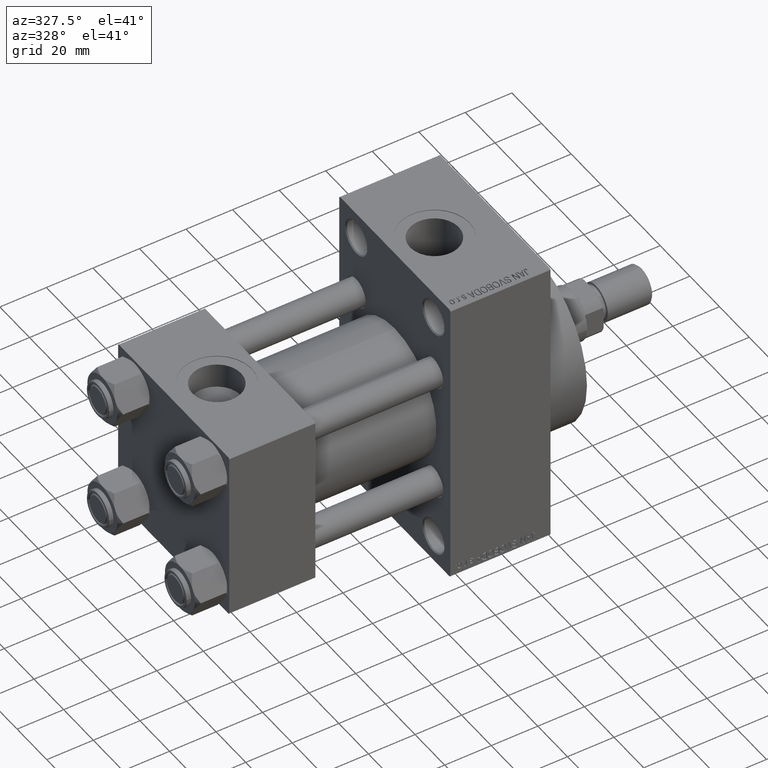
[diagram: clean part render]
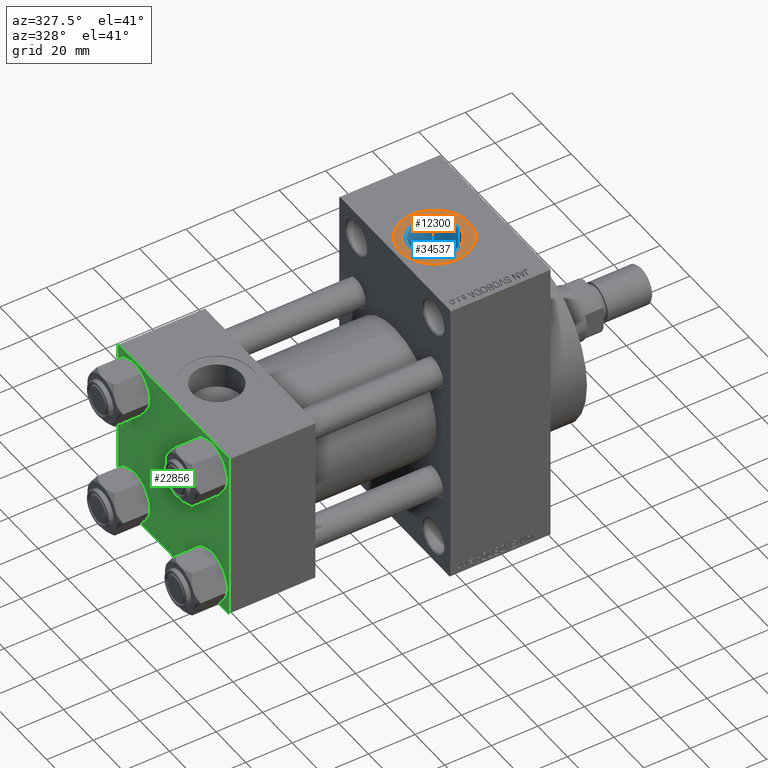
[diagram: same view with three faces highlighted in distinct colors, each labeled with its STEP entity id]
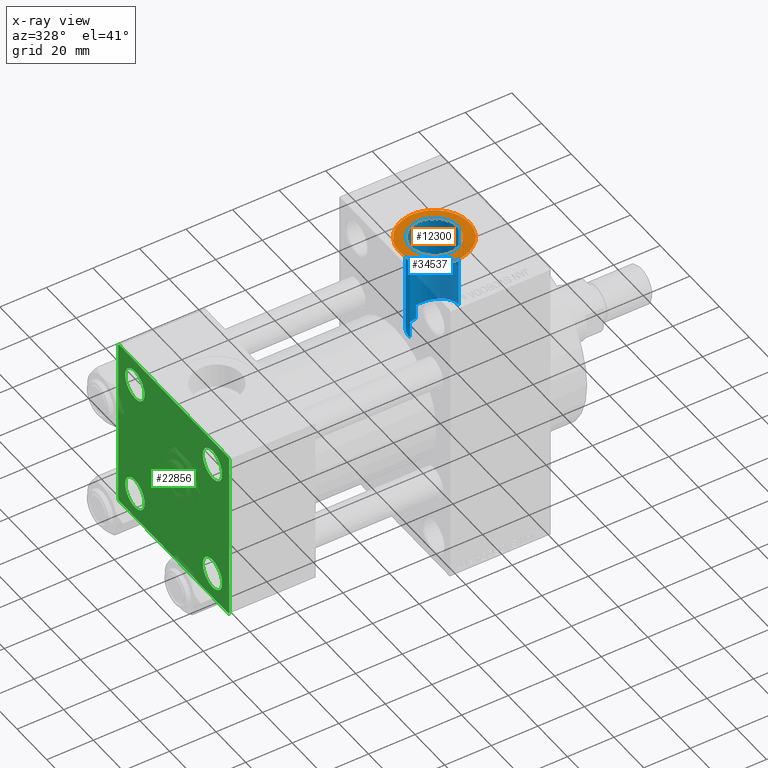
[diagram: x-ray of the same camera — body ghosted, the three highlighted faces saturated]
A machine part, auxiliary view with three faces highlighted in distinct colors.
The next image is the same camera in x-ray (body ghosted, the three faces saturated) — at least one of them is partly hidden behind the body in this view.
Their STEP definitions:

[orange] entity #12300 — the highlighted planar face has unit normal (0, 0, 1).
#166 = DIRECTION ( 'NONE',  ( 0.000000000000000000, 0.000000000000000000, 1.000000000000000000 ) ) ;
#2687 = ORIENTED_EDGE ( 'NONE', *, *, #12467, .T. ) ;
#2760 = CIRCLE ( 'NONE', #14005, 15.00000000000000000 ) ;
#4150 = DIRECTION ( 'NONE',  ( -0.000000000000000000, -0.000000000000000000, -1.000000000000000000 ) ) ;
#4893 = AXIS2_PLACEMENT_3D ( 'NONE', #23247, #4150, #15458 ) ;
#6428 = DIRECTION ( 'NONE',  ( 1.000000000000000000, 0.000000000000000000, 0.000000000000000000 ) ) ;
#7208 = ORIENTED_EDGE ( 'NONE', *, *, #42779, .T. ) ;
#7538 = DIRECTION ( 'NONE',  ( 1.000000000000000000, 0.000000000000000000, -0.000000000000000000 ) ) ;
#8243 = AXIS2_PLACEMENT_3D ( 'NONE', #41852, #37830, #6428 ) ;
#9765 = CARTESIAN_POINT ( 'NONE',  ( 112.0000000000000000, -1.184237892933500047E-14, 63.79999999999996874 ) ) ;
#11311 = CARTESIAN_POINT ( 'NONE',  ( 112.0000000000000000, -1.184237892933500047E-14, 63.79999999999996874 ) ) ;
#12300 = ADVANCED_FACE ( 'NONE', ( #33937, #49302 ), #30159, .T. ) ;
#12467 = EDGE_CURVE ( 'NONE', #18960, #23036, #2760, .T. ) ;
#14005 = AXIS2_PLACEMENT_3D ( 'NONE', #9765, #37166, #48501 ) ;
#15458 = DIRECTION ( 'NONE',  ( 1.000000000000000000, 0.000000000000000000, 0.000000000000000000 ) ) ;
#17566 = CARTESIAN_POINT ( 'NONE',  ( 122.4800000000000040, -1.055894908382857498E-14, 63.79999999999996874 ) ) ;
#18960 = VERTEX_POINT ( 'NONE', #45325 ) ;
#21262 = AXIS2_PLACEMENT_3D ( 'NONE', #22539, #166, #41916 ) ;
#22539 = CARTESIAN_POINT ( 'NONE',  ( 112.0000000000000000, -1.184237892933500047E-14, 63.79999999999996874 ) ) ;
#23036 = VERTEX_POINT ( 'NONE', #30461 ) ;
#23247 = CARTESIAN_POINT ( 'NONE',  ( 112.0000000000000000, -1.184237892933500047E-14, 63.79999999999996874 ) ) ;
#23583 = EDGE_CURVE ( 'NONE', #23036, #18960, #28481, .T. ) ;
#26636 = DIRECTION ( 'NONE',  ( 0.000000000000000000, 0.000000000000000000, 1.000000000000000000 ) ) ;
#26947 = ORIENTED_EDGE ( 'NONE', *, *, #23583, .T. ) ;
#28481 = CIRCLE ( 'NONE', #21262, 15.00000000000000000 ) ;
#30159 = PLANE ( 'NONE',  #43683 ) ;
#30461 = CARTESIAN_POINT ( 'NONE',  ( 127.0000000000000000, -1.184237892933500047E-14, 63.79999999999996874 ) ) ;
#30896 = ORIENTED_EDGE ( 'NONE', *, *, #42228, .T. ) ;
#33937 = FACE_BOUND ( 'NONE', #35736, .T. ) ;
#35736 = EDGE_LOOP ( 'NONE', ( #7208, #30896 ) ) ;
#37166 = DIRECTION ( 'NONE',  ( 0.000000000000000000, 0.000000000000000000, 1.000000000000000000 ) ) ;
#37830 = DIRECTION ( 'NONE',  ( -0.000000000000000000, -0.000000000000000000, -1.000000000000000000 ) ) ;
#39418 = CIRCLE ( 'NONE', #4893, 10.48000000000000398 ) ;
#39987 = VERTEX_POINT ( 'NONE', #45945 ) ;
#41852 = CARTESIAN_POINT ( 'NONE',  ( 112.0000000000000000, -1.184237892933500047E-14, 63.79999999999996874 ) ) ;
#41916 = DIRECTION ( 'NONE',  ( 1.000000000000000000, 0.000000000000000000, 0.000000000000000000 ) ) ;
#42228 = EDGE_CURVE ( 'NONE', #45320, #39987, #39418, .T. ) ;
#42779 = EDGE_CURVE ( 'NONE', #39987, #45320, #45194, .T. ) ;
#43683 = AXIS2_PLACEMENT_3D ( 'NONE', #11311, #26636, #7538 ) ;
#45194 = CIRCLE ( 'NONE', #8243, 10.48000000000000398 ) ;
#45320 = VERTEX_POINT ( 'NONE', #17566 ) ;
#45325 = CARTESIAN_POINT ( 'NONE',  ( 96.99999999999998579, -1.000540873061397009E-14, 63.79999999999996874 ) ) ;
#45945 = CARTESIAN_POINT ( 'NONE',  ( 101.5199999999999960, -1.184237892933500047E-14, 63.79999999999996874 ) ) ;
#48501 = DIRECTION ( 'NONE',  ( 1.000000000000000000, 0.000000000000000000, 0.000000000000000000 ) ) ;
#49302 = FACE_OUTER_BOUND ( 'NONE', #49356, .T. ) ;
#49356 = EDGE_LOOP ( 'NONE', ( #26947, #2687 ) ) ;

[blue] entity #34537 — the highlighted cylindrical surface (edge-blend (fillet) strip) has radius 10.48 mm, axis along (0, 0, -1).
#1329 = CYLINDRICAL_SURFACE ( 'NONE', #24700, 10.48000000000000398 ) ;
#1929 = CARTESIAN_POINT ( 'NONE',  ( 120.0047687462550954, 6.803400717438811363, 25.61891449644601337 ) ) ;
#2421 = CARTESIAN_POINT ( 'NONE',  ( 116.5354866893690655, 9.476643251961673897, 24.75065044043747164 ) ) ;
#2475 = CARTESIAN_POINT ( 'NONE',  ( 110.7400000000000375, 10.40398000767013365, 86.79999999999995453 ) ) ;
#2677 = CARTESIAN_POINT ( 'NONE',  ( 101.8172526941615104, 2.560154069184302994, 20.34938652026761119 ) ) ;
#2930 = CARTESIAN_POINT ( 'NONE',  ( 102.3367565711945701, 4.068703859687935243, 20.09447083081811769 ) ) ;
#4240 = CARTESIAN_POINT ( 'NONE',  ( 122.4800000000000040, -1.055894908382857498E-14, 86.79999999999995453 ) ) ;
#4909 = VERTEX_POINT ( 'NONE', #20077 ) ;
#5458 = CARTESIAN_POINT ( 'NONE',  ( 113.7090337631726413, 10.34650826617284558, 24.39684948145013621 ) ) ;
#5699 = CARTESIAN_POINT ( 'NONE',  ( 122.4800000000000040, 0.3734547879239727419, 26.49999999999999645 ) ) ;
#5964 = CARTESIAN_POINT ( 'NONE',  ( 110.4203714346557348, 10.36527059146240148, 17.68652548756300291 ) ) ;
#5995 = LINE ( 'NONE', #6251, #9187 ) ;
#6206 = CARTESIAN_POINT ( 'NONE',  ( 112.2299651273087733, 10.50378173186091857, 24.32953270370887466 ) ) ;
#6251 = CARTESIAN_POINT ( 'NONE',  ( 101.5199999999999960, -1.184237892933500047E-14, 86.79999999999995453 ) ) ;
#6428 = DIRECTION ( 'NONE',  ( 1.000000000000000000, 0.000000000000000000, 0.000000000000000000 ) ) ;
#6458 = CARTESIAN_POINT ( 'NONE',  ( 101.9916734818969957, 3.173751558613250090, 20.26192827245122885 ) ) ;
#6703 = CARTESIAN_POINT ( 'NONE',  ( 101.5808659713658244, 1.297835754585097590, 20.46869666010345767 ) ) ;
#6749 = VECTOR ( 'NONE', #48514, 1000.000000000000000 ) ;
#6952 = CARTESIAN_POINT ( 'NONE',  ( 108.2549261276042216, 9.808449044963712282, 18.00254357143011319 ) ) ;
#8243 = AXIS2_PLACEMENT_3D ( 'NONE', #41852, #37830, #6428 ) ;
#9187 = VECTOR ( 'NONE', #41183, 1000.000000000000000 ) ;
#9228 = CARTESIAN_POINT ( 'NONE',  ( 110.7400000000000375, 10.40398000767013365, 24.37226292324945831 ) ) ;
#10232 = CARTESIAN_POINT ( 'NONE',  ( 121.8350634734960209, 3.638478613961682040, 26.25141056013274010 ) ) ;
#10317 = CARTESIAN_POINT ( 'NONE',  ( 110.7400000000000375, 10.40398000767013365, 17.66372554134603234 ) ) ;
#10728 = CARTESIAN_POINT ( 'NONE',  ( 103.4011913467666233, 5.999084284177357951, 19.60435374003196785 ) ) ;
#11794 = DIRECTION ( 'NONE',  ( 0.000000000000000000, 0.000000000000000000, -1.000000000000000000 ) ) ;
#12525 = EDGE_CURVE ( 'NONE', #39987, #13561, #5995, .T. ) ;
#12890 = DIRECTION ( 'NONE',  ( -1.000000000000000000, 0.000000000000000000, 0.000000000000000000 ) ) ;
#13513 = CARTESIAN_POINT ( 'NONE',  ( 103.7748447540609931, 6.501949221870917839, 19.44336272688398992 ) ) ;
#13561 = VERTEX_POINT ( 'NONE', #17795 ) ;
#13752 = CARTESIAN_POINT ( 'NONE',  ( 101.5199999999999960, 2.510525899711658857E-15, 20.50000000000000000 ) ) ;
#13994 = CARTESIAN_POINT ( 'NONE',  ( 122.1639830582153223, 2.580729652396743568, 26.37652280659619919 ) ) ;
#14487 = CARTESIAN_POINT ( 'NONE',  ( 106.5676313420410679, 8.967626198694219397, 18.43549189657611009 ) ) ;
#14617 = ORIENTED_EDGE ( 'NONE', *, *, #42779, .F. ) ;
#15980 = B_SPLINE_CURVE_WITH_KNOTS ( 'NONE', 3,
 ( #13752, #41149, #6703, #2677, #6458, #2930, #17753, #29821, #48955, #45172, #10728, #13513, #21773, #28839, #26055, #37129, #25059, #14487, #40411, #41402, #6952, #33105, #48463, #17515, #5964, #36382 ),
 .UNSPECIFIED., .F., .F.,
 ( 4, 2, 2, 2, 2, 2, 2, 2, 2, 2, 2, 2, 4 ),
 ( 0.03336594956818871721, 0.03529115265112772043, 0.03721635573406671671, 0.03817895727553621138, 0.03914155881700570605, 0.04010416035847520072, 0.04106676189994469539, 0.04299196498288371249, 0.04395456652435320716, 0.04491716806582270183, 0.04684237114876168423, 0.04780497269023117890, 0.04876757423170067357 ),
 .UNSPECIFIED. ) ;
#16649 = EDGE_CURVE ( 'NONE', #45320, #4909, #38682, .T. ) ;
#17515 = CARTESIAN_POINT ( 'NONE',  ( 110.0991158311732221, 10.31120164165120023, 17.71821964665046778 ) ) ;
#17558 = LINE ( 'NONE', #2475, #6749 ) ;
#17566 = CARTESIAN_POINT ( 'NONE',  ( 122.4800000000000040, -1.055894908382857498E-14, 63.79999999999996874 ) ) ;
#17746 = CARTESIAN_POINT ( 'NONE',  ( 118.4137155183433237, 8.320227012065174677, 25.16506772452921936 ) ) ;
#17753 = CARTESIAN_POINT ( 'NONE',  ( 102.4658413712517557, 4.362386374640967013, 20.03258463067211892 ) ) ;
#17795 = CARTESIAN_POINT ( 'NONE',  ( 101.5199999999999960, 2.510525899711658857E-15, 20.50000000000000000 ) ) ;
#18691 = B_SPLINE_CURVE_WITH_KNOTS ( 'NONE', 3,
 ( #9228, #25310, #6206, #21014, #5458, #28582, #21529, #36875, #2421, #24550, #17746, #24800, #1929, #39910, #33096, #48456, #10232, #43928, #13994, #40149, #20776, #44179, #5699, #40403 ),
 .UNSPECIFIED., .F., .F.,
 ( 4, 2, 2, 2, 2, 2, 2, 2, 2, 2, 2, 4 ),
 ( 0.000000000000000000, 0.002226462588988903889, 0.003339693883483335016, 0.004452925177977766144, 0.006679387766966586766, 0.008905850355955407388, 0.01113231294494422714, 0.01335877553393304516, 0.01447200682842746632, 0.01558523812292188573, 0.01669846941741630689, 0.01781170071191072457 ),
 .UNSPECIFIED. ) ;
#20077 = CARTESIAN_POINT ( 'NONE',  ( 122.4800000000001603, 1.369086318735094867E-14, 26.50000000000006750 ) ) ;
#20147 = ORIENTED_EDGE ( 'NONE', *, *, #16649, .F. ) ;
#20776 = CARTESIAN_POINT ( 'NONE',  ( 122.3797757294332484, 1.493268271475387765, 26.46049876817950164 ) ) ;
#21014 = CARTESIAN_POINT ( 'NONE',  ( 113.3395490093498239, 10.40067243543118636, 24.37370326712205326 ) ) ;
#21462 = ORIENTED_EDGE ( 'NONE', *, *, #29340, .T. ) ;
#21529 = CARTESIAN_POINT ( 'NONE',  ( 114.8037318579564072, 10.10473920047652996, 24.49813564323964954 ) ) ;
#21718 = CARTESIAN_POINT ( 'NONE',  ( 110.7400000000000375, 10.40398000767013365, 24.37226292324945831 ) ) ;
#21773 = CARTESIAN_POINT ( 'NONE',  ( 103.9742710306879445, 6.746563713616611224, 19.35963802281104762 ) ) ;
#23957 = CARTESIAN_POINT ( 'NONE',  ( 112.0000000000000000, -1.184237892933500047E-14, 86.79999999999995453 ) ) ;
#24317 = ORIENTED_EDGE ( 'NONE', *, *, #44491, .F. ) ;
#24550 = CARTESIAN_POINT ( 'NONE',  ( 117.8214836787066560, 8.745726648652290436, 25.01826792439339897 ) ) ;
#24700 = AXIS2_PLACEMENT_3D ( 'NONE', #23957, #39300, #12890 ) ;
#24800 = CARTESIAN_POINT ( 'NONE',  ( 119.5039792871088196, 7.352021432312235483, 25.46477158686608533 ) ) ;
#25059 = CARTESIAN_POINT ( 'NONE',  ( 106.0406083823525449, 8.626389767625555649, 18.59760954222976181 ) ) ;
#25310 = CARTESIAN_POINT ( 'NONE',  ( 111.4867779838282615, 10.49442042171647493, 24.33365591073748035 ) ) ;
#26055 = CARTESIAN_POINT ( 'NONE',  ( 105.0528299167331312, 7.871036018965745562, 18.93334913321979585 ) ) ;
#26743 = VERTEX_POINT ( 'NONE', #21718 ) ;
#28582 = CARTESIAN_POINT ( 'NONE',  ( 114.4441749543285738, 10.19789382658400179, 24.45934298840090193 ) ) ;
#28839 = CARTESIAN_POINT ( 'NONE',  ( 104.5999354725380783, 7.447256858224746701, 19.10589413119057767 ) ) ;
#29137 = VECTOR ( 'NONE', #11794, 1000.000000000000000 ) ;
#29340 = EDGE_CURVE ( 'NONE', #26743, #4909, #18691, .T. ) ;
#29821 = CARTESIAN_POINT ( 'NONE',  ( 102.7465031261292978, 4.929846979882105629, 19.90053945554344139 ) ) ;
#31896 = ORIENTED_EDGE ( 'NONE', *, *, #37893, .T. ) ;
#33096 = CARTESIAN_POINT ( 'NONE',  ( 121.2405592406192341, 4.999168989607013280, 26.03318073817900213 ) ) ;
#33105 = CARTESIAN_POINT ( 'NONE',  ( 109.1609584177873273, 10.09308949919720533, 17.84352421155690394 ) ) ;
#33801 = VERTEX_POINT ( 'NONE', #10317 ) ;
#34537 = ADVANCED_FACE ( 'NONE', ( #43320 ), #1329, .F. ) ;
#36382 = CARTESIAN_POINT ( 'NONE',  ( 110.7400000000000375, 10.40398000767013365, 17.66372554134603234 ) ) ;
#36875 = CARTESIAN_POINT ( 'NONE',  ( 115.8597611319121512, 9.771269649766484378, 24.63391780956525778 ) ) ;
#37129 = CARTESIAN_POINT ( 'NONE',  ( 105.7867860278862366, 8.445286684367433239, 18.68076181990201334 ) ) ;
#37830 = DIRECTION ( 'NONE',  ( -0.000000000000000000, -0.000000000000000000, -1.000000000000000000 ) ) ;
#37893 = EDGE_CURVE ( 'NONE', #13561, #33801, #15980, .T. ) ;
#38682 = LINE ( 'NONE', #4240, #29137 ) ;
#39300 = DIRECTION ( 'NONE',  ( 0.000000000000000000, 0.000000000000000000, -1.000000000000000000 ) ) ;
#39910 = CARTESIAN_POINT ( 'NONE',  ( 120.8701661937233069, 5.628741928601555422, 25.90236100434593780 ) ) ;
#39987 = VERTEX_POINT ( 'NONE', #45945 ) ;
#40149 = CARTESIAN_POINT ( 'NONE',  ( 122.3203974186215106, 1.859062739166803757, 26.43718984002442340 ) ) ;
#40403 = CARTESIAN_POINT ( 'NONE',  ( 122.4800000000001603, 1.369086318735094867E-14, 26.50000000000006750 ) ) ;
#40411 = CARTESIAN_POINT ( 'NONE',  ( 106.8412927899010612, 9.127810295380946570, 18.35647067852579184 ) ) ;
#41149 = CARTESIAN_POINT ( 'NONE',  ( 101.5199999999999960, 0.6432653997690287451, 20.50000000000000000 ) ) ;
#41183 = DIRECTION ( 'NONE',  ( 0.000000000000000000, 0.000000000000000000, -1.000000000000000000 ) ) ;
#41402 = CARTESIAN_POINT ( 'NONE',  ( 107.6756880578672479, 9.566914324853396323, 18.13372263328941969 ) ) ;
#41852 = CARTESIAN_POINT ( 'NONE',  ( 112.0000000000000000, -1.184237892933500047E-14, 63.79999999999996874 ) ) ;
#42779 = EDGE_CURVE ( 'NONE', #39987, #45320, #45194, .T. ) ;
#43320 = FACE_OUTER_BOUND ( 'NONE', #45031, .T. ) ;
#43528 = ORIENTED_EDGE ( 'NONE', *, *, #12525, .T. ) ;
#43928 = CARTESIAN_POINT ( 'NONE',  ( 122.0669445693513495, 2.936601299046107449, 26.33916201839659621 ) ) ;
#44179 = CARTESIAN_POINT ( 'NONE',  ( 122.4596852673074494, 0.7513843442591080501, 26.49194720587043506 ) ) ;
#44491 = EDGE_CURVE ( 'NONE', #26743, #33801, #17558, .T. ) ;
#45031 = EDGE_LOOP ( 'NONE', ( #20147, #14617, #43528, #31896, #24317, #21462 ) ) ;
#45172 = CARTESIAN_POINT ( 'NONE',  ( 103.2259820339099576, 5.739795438484815548, 19.68201426512246499 ) ) ;
#45194 = CIRCLE ( 'NONE', #8243, 10.48000000000000398 ) ;
#45320 = VERTEX_POINT ( 'NONE', #17566 ) ;
#45945 = CARTESIAN_POINT ( 'NONE',  ( 101.5199999999999960, -1.184237892933500047E-14, 63.79999999999996874 ) ) ;
#48456 = CARTESIAN_POINT ( 'NONE',  ( 121.6992295974814340, 3.986558870987728209, 26.20065640115691608 ) ) ;
#48463 = CARTESIAN_POINT ( 'NONE',  ( 109.4692022797542137, 10.17493502766898494, 17.79682229850193664 ) ) ;
#48514 = DIRECTION ( 'NONE',  ( 0.000000000000000000, 0.000000000000000000, -1.000000000000000000 ) ) ;
#48955 = CARTESIAN_POINT ( 'NONE',  ( 102.8986382944031988, 5.205176082402801718, 19.83010537438763521 ) ) ;

[green] entity #22856 — the highlighted planar face has unit normal (-1, 0, 0).
#1289 = LINE ( 'NONE', #47312, #39517 ) ;
#2205 = CARTESIAN_POINT ( 'NONE',  ( 0.000000000000000000, 37.49999999999999289, 37.50000000000000000 ) ) ;
#2821 = VECTOR ( 'NONE', #46285, 1000.000000000000000 ) ;
#3070 = CARTESIAN_POINT ( 'NONE',  ( 0.000000000000000000, 26.14999999999999858, 19.64999999999998437 ) ) ;
#3076 = FACE_BOUND ( 'NONE', #9733, .T. ) ;
#3176 = CARTESIAN_POINT ( 'NONE',  ( 0.000000000000000000, -37.50000000000000000, -37.00000000000003553 ) ) ;
#3801 = EDGE_CURVE ( 'NONE', #5228, #13237, #1289, .T. ) ;
#4635 = DIRECTION ( 'NONE',  ( -0.000000000000000000, 0.7071067811865474617, 0.7071067811865474617 ) ) ;
#5205 = ORIENTED_EDGE ( 'NONE', *, *, #41134, .T. ) ;
#5228 = VERTEX_POINT ( 'NONE', #40147 ) ;
#5388 = ORIENTED_EDGE ( 'NONE', *, *, #17917, .T. ) ;
#6483 = CIRCLE ( 'NONE', #27324, 6.500000000000015987 ) ;
#6789 = CARTESIAN_POINT ( 'NONE',  ( 0.000000000000000000, -37.50000000000000711, 36.99999999999999289 ) ) ;
#7052 = CARTESIAN_POINT ( 'NONE',  ( 0.000000000000000000, 37.49999999999999289, 37.50000000000000000 ) ) ;
#7302 = EDGE_CURVE ( 'NONE', #37403, #15619, #19556, .T. ) ;
#7867 = CARTESIAN_POINT ( 'NONE',  ( 0.000000000000000000, -26.14999999999999147, -26.15000000000000924 ) ) ;
#8996 = CARTESIAN_POINT ( 'NONE',  ( 0.000000000000000000, 26.14999999999999858, -32.65000000000001990 ) ) ;
#9035 = VECTOR ( 'NONE', #4635, 1000.000000000000114 ) ;
#9386 = DIRECTION ( 'NONE',  ( 0.000000000000000000, 0.000000000000000000, 1.000000000000000000 ) ) ;
#9651 = CARTESIAN_POINT ( 'NONE',  ( 0.000000000000000000, 26.14999999999999858, 26.15000000000000213 ) ) ;
#9733 = EDGE_LOOP ( 'NONE', ( #11196, #13570 ) ) ;
#9927 = CARTESIAN_POINT ( 'NONE',  ( 0.000000000000000000, -26.14999999999999147, 19.64999999999999147 ) ) ;
#10371 = CARTESIAN_POINT ( 'NONE',  ( 0.000000000000000000, 37.49999999999999289, -37.50000000000000000 ) ) ;
#10373 = FACE_OUTER_BOUND ( 'NONE', #37718, .T. ) ;
#10849 = LINE ( 'NONE', #26666, #2821 ) ;
#11196 = ORIENTED_EDGE ( 'NONE', *, *, #42499, .T. ) ;
#11724 = CIRCLE ( 'NONE', #13336, 6.500000000000023093 ) ;
#12845 = DIRECTION ( 'NONE',  ( 0.000000000000000000, 0.7071067811865474617, -0.7071067811865474617 ) ) ;
#13230 = DIRECTION ( 'NONE',  ( 1.000000000000000000, -0.000000000000000000, 0.000000000000000000 ) ) ;
#13237 = VERTEX_POINT ( 'NONE', #48373 ) ;
#13336 = AXIS2_PLACEMENT_3D ( 'NONE', #34024, #22945, #41817 ) ;
#13341 = DIRECTION ( 'NONE',  ( 0.000000000000000000, 0.000000000000000000, 1.000000000000000000 ) ) ;
#13452 = VECTOR ( 'NONE', #25701, 1000.000000000000000 ) ;
#13570 = ORIENTED_EDGE ( 'NONE', *, *, #7302, .T. ) ;
#14124 = EDGE_CURVE ( 'NONE', #32607, #18696, #45335, .T. ) ;
#14147 = LINE ( 'NONE', #10371, #13452 ) ;
#14148 = CARTESIAN_POINT ( 'NONE',  ( 0.000000000000000000, 0.000000000000000000, 0.000000000000000000 ) ) ;
#14174 = DIRECTION ( 'NONE',  ( 1.000000000000000000, -0.000000000000000000, 0.000000000000000000 ) ) ;
#14706 = VERTEX_POINT ( 'NONE', #3176 ) ;
#15001 = VERTEX_POINT ( 'NONE', #33537 ) ;
#15619 = VERTEX_POINT ( 'NONE', #15790 ) ;
#15790 = CARTESIAN_POINT ( 'NONE',  ( 0.000000000000000000, -26.14999999999999147, -19.64999999999999503 ) ) ;
#16711 = ORIENTED_EDGE ( 'NONE', *, *, #3801, .T. ) ;
#16823 = EDGE_CURVE ( 'NONE', #13237, #31689, #37645, .T. ) ;
#17650 = FACE_BOUND ( 'NONE', #19994, .T. ) ;
#17917 = EDGE_CURVE ( 'NONE', #18696, #32607, #34698, .T. ) ;
#18008 = VERTEX_POINT ( 'NONE', #6789 ) ;
#18217 = ORIENTED_EDGE ( 'NONE', *, *, #33420, .T. ) ;
#18696 = VERTEX_POINT ( 'NONE', #33807 ) ;
#18835 = EDGE_CURVE ( 'NONE', #18008, #25032, #23725, .T. ) ;
#19165 = CARTESIAN_POINT ( 'NONE',  ( 0.000000000000000000, -37.00000000000000711, 37.49999999999999289 ) ) ;
#19540 = LINE ( 'NONE', #45478, #41229 ) ;
#19556 = CIRCLE ( 'NONE', #41245, 6.500000000000015987 ) ;
#19561 = EDGE_CURVE ( 'NONE', #27851, #26010, #25932, .T. ) ;
#19994 = EDGE_LOOP ( 'NONE', ( #5388, #49413 ) ) ;
#20166 = EDGE_CURVE ( 'NONE', #31689, #15001, #41511, .T. ) ;
#20251 = AXIS2_PLACEMENT_3D ( 'NONE', #43839, #24961, #9386 ) ;
#20697 = EDGE_CURVE ( 'NONE', #18008, #14706, #19540, .T. ) ;
#20851 = ORIENTED_EDGE ( 'NONE', *, *, #16823, .T. ) ;
#21108 = CARTESIAN_POINT ( 'NONE',  ( 0.000000000000000000, 26.14999999999999858, 26.15000000000000213 ) ) ;
#21554 = DIRECTION ( 'NONE',  ( 0.000000000000000000, 0.000000000000000000, -1.000000000000000000 ) ) ;
#21631 = CARTESIAN_POINT ( 'NONE',  ( 0.000000000000000000, 37.24999999999998579, -37.24999999999998579 ) ) ;
#22167 = DIRECTION ( 'NONE',  ( -1.000000000000000000, 0.000000000000000000, -0.000000000000000000 ) ) ;
#22317 = DIRECTION ( 'NONE',  ( 0.000000000000000000, 0.000000000000000000, 1.000000000000000000 ) ) ;
#22320 = VERTEX_POINT ( 'NONE', #27172 ) ;
#22856 = ADVANCED_FACE ( 'NONE', ( #37521, #3076, #45314, #17650, #10373 ), #29225, .T. ) ;
#22945 = DIRECTION ( 'NONE',  ( 1.000000000000000000, -0.000000000000000000, 0.000000000000000000 ) ) ;
#22997 = DIRECTION ( 'NONE',  ( 1.000000000000000000, -0.000000000000000000, 0.000000000000000000 ) ) ;
#23271 = ORIENTED_EDGE ( 'NONE', *, *, #19561, .T. ) ;
#23489 = CIRCLE ( 'NONE', #40340, 6.500000000000015987 ) ;
#23725 = LINE ( 'NONE', #39073, #9035 ) ;
#24242 = AXIS2_PLACEMENT_3D ( 'NONE', #21108, #47795, #13341 ) ;
#24921 = ORIENTED_EDGE ( 'NONE', *, *, #18835, .T. ) ;
#24961 = DIRECTION ( 'NONE',  ( 1.000000000000000000, -0.000000000000000000, 0.000000000000000000 ) ) ;
#25032 = VERTEX_POINT ( 'NONE', #19165 ) ;
#25424 = DIRECTION ( 'NONE',  ( -0.000000000000000000, -0.7071067811865474617, -0.7071067811865474617 ) ) ;
#25701 = DIRECTION ( 'NONE',  ( 0.000000000000000000, -1.000000000000000000, -9.251858538542972814E-17 ) ) ;
#25932 = CIRCLE ( 'NONE', #41988, 6.500000000000015987 ) ;
#26010 = VERTEX_POINT ( 'NONE', #27718 ) ;
#26666 = CARTESIAN_POINT ( 'NONE',  ( 0.000000000000000000, -37.24999999999975842, -37.25000000000027001 ) ) ;
#26725 = VECTOR ( 'NONE', #25424, 1000.000000000000114 ) ;
#26770 = CARTESIAN_POINT ( 'NONE',  ( 0.000000000000000000, 26.14999999999999858, -26.15000000000000213 ) ) ;
#27172 = CARTESIAN_POINT ( 'NONE',  ( 0.000000000000000000, -26.14999999999999147, 32.65000000000003411 ) ) ;
#27324 = AXIS2_PLACEMENT_3D ( 'NONE', #47688, #13230, #28816 ) ;
#27718 = CARTESIAN_POINT ( 'NONE',  ( 0.000000000000000000, 26.14999999999999858, -19.64999999999998792 ) ) ;
#27851 = VERTEX_POINT ( 'NONE', #8996 ) ;
#28816 = DIRECTION ( 'NONE',  ( 0.000000000000000000, 0.000000000000000000, 1.000000000000000000 ) ) ;
#29005 = DIRECTION ( 'NONE',  ( 0.000000000000000000, 0.000000000000000000, 1.000000000000000000 ) ) ;
#29225 = PLANE ( 'NONE',  #40483 ) ;
#29717 = DIRECTION ( 'NONE',  ( -0.000000000000000000, 0.000000000000000000, 1.000000000000000000 ) ) ;
#29932 = EDGE_CURVE ( 'NONE', #48850, #22320, #11724, .T. ) ;
#30638 = VECTOR ( 'NONE', #21554, 1000.000000000000000 ) ;
#31230 = DIRECTION ( 'NONE',  ( 0.000000000000000000, 0.000000000000000000, 1.000000000000000000 ) ) ;
#31449 = EDGE_LOOP ( 'NONE', ( #5205, #23271 ) ) ;
#31689 = VERTEX_POINT ( 'NONE', #42211 ) ;
#32607 = VERTEX_POINT ( 'NONE', #3070 ) ;
#33398 = DIRECTION ( 'NONE',  ( 1.000000000000000000, -0.000000000000000000, 0.000000000000000000 ) ) ;
#33420 = EDGE_CURVE ( 'NONE', #15001, #48400, #14147, .T. ) ;
#33537 = CARTESIAN_POINT ( 'NONE',  ( 0.000000000000000000, 36.99999999999997868, -37.50000000000000000 ) ) ;
#33807 = CARTESIAN_POINT ( 'NONE',  ( 0.000000000000000000, 26.14999999999999858, 32.65000000000002700 ) ) ;
#34024 = CARTESIAN_POINT ( 'NONE',  ( 0.000000000000000000, -26.14999999999999147, 26.15000000000000924 ) ) ;
#34698 = CIRCLE ( 'NONE', #24242, 6.500000000000023093 ) ;
#36443 = CARTESIAN_POINT ( 'NONE',  ( 0.000000000000000000, -37.00000000000002132, -37.50000000000000711 ) ) ;
#36605 = EDGE_CURVE ( 'NONE', #5228, #25032, #36970, .T. ) ;
#36970 = LINE ( 'NONE', #7052, #43264 ) ;
#37380 = ORIENTED_EDGE ( 'NONE', *, *, #20697, .F. ) ;
#37403 = VERTEX_POINT ( 'NONE', #37986 ) ;
#37521 = FACE_BOUND ( 'NONE', #43022, .T. ) ;
#37645 = LINE ( 'NONE', #2205, #30638 ) ;
#37718 = EDGE_LOOP ( 'NONE', ( #20851, #41109, #18217, #43962, #37380, #24921, #47830, #16711 ) ) ;
#37986 = CARTESIAN_POINT ( 'NONE',  ( 0.000000000000000000, -26.14999999999999147, -32.65000000000002700 ) ) ;
#38349 = DIRECTION ( 'NONE',  ( 0.000000000000000000, 0.000000000000000000, 1.000000000000000000 ) ) ;
#39073 = CARTESIAN_POINT ( 'NONE',  ( -0.000000000000000000, -37.25000000000000000, 37.25000000000000000 ) ) ;
#39517 = VECTOR ( 'NONE', #12845, 1000.000000000000114 ) ;
#40147 = CARTESIAN_POINT ( 'NONE',  ( 0.000000000000000000, 36.99999999999999289, 37.50000000000000000 ) ) ;
#40183 = ORIENTED_EDGE ( 'NONE', *, *, #29932, .T. ) ;
#40340 = AXIS2_PLACEMENT_3D ( 'NONE', #7867, #43052, #31230 ) ;
#40483 = AXIS2_PLACEMENT_3D ( 'NONE', #14148, #22167, #29717 ) ;
#41109 = ORIENTED_EDGE ( 'NONE', *, *, #20166, .T. ) ;
#41134 = EDGE_CURVE ( 'NONE', #26010, #27851, #6483, .T. ) ;
#41212 = ORIENTED_EDGE ( 'NONE', *, *, #42949, .T. ) ;
#41229 = VECTOR ( 'NONE', #46220, 1000.000000000000000 ) ;
#41245 = AXIS2_PLACEMENT_3D ( 'NONE', #45215, #33398, #22317 ) ;
#41511 = LINE ( 'NONE', #21631, #26725 ) ;
#41817 = DIRECTION ( 'NONE',  ( 0.000000000000000000, 0.000000000000000000, 1.000000000000000000 ) ) ;
#41959 = CIRCLE ( 'NONE', #20251, 6.500000000000023093 ) ;
#41988 = AXIS2_PLACEMENT_3D ( 'NONE', #26770, #22997, #38349 ) ;
#42211 = CARTESIAN_POINT ( 'NONE',  ( 0.000000000000000000, 37.49999999999999289, -36.99999999999998579 ) ) ;
#42499 = EDGE_CURVE ( 'NONE', #15619, #37403, #23489, .T. ) ;
#42949 = EDGE_CURVE ( 'NONE', #22320, #48850, #41959, .T. ) ;
#43022 = EDGE_LOOP ( 'NONE', ( #41212, #40183 ) ) ;
#43052 = DIRECTION ( 'NONE',  ( 1.000000000000000000, -0.000000000000000000, 0.000000000000000000 ) ) ;
#43264 = VECTOR ( 'NONE', #44778, 1000.000000000000000 ) ;
#43839 = CARTESIAN_POINT ( 'NONE',  ( 0.000000000000000000, -26.14999999999999147, 26.15000000000000924 ) ) ;
#43962 = ORIENTED_EDGE ( 'NONE', *, *, #47374, .T. ) ;
#44778 = DIRECTION ( 'NONE',  ( 0.000000000000000000, -1.000000000000000000, -9.251858538542971581E-17 ) ) ;
#45215 = CARTESIAN_POINT ( 'NONE',  ( 0.000000000000000000, -26.14999999999999147, -26.15000000000000924 ) ) ;
#45314 = FACE_BOUND ( 'NONE', #31449, .T. ) ;
#45335 = CIRCLE ( 'NONE', #46953, 6.500000000000023093 ) ;
#45478 = CARTESIAN_POINT ( 'NONE',  ( 0.000000000000000000, -37.50000000000000711, 37.49999999999999289 ) ) ;
#46220 = DIRECTION ( 'NONE',  ( 0.000000000000000000, 9.251858538542971581E-17, -1.000000000000000000 ) ) ;
#46285 = DIRECTION ( 'NONE',  ( 0.000000000000000000, -0.7071067811865524577, 0.7071067811865426878 ) ) ;
#46953 = AXIS2_PLACEMENT_3D ( 'NONE', #9651, #14174, #29005 ) ;
#47312 = CARTESIAN_POINT ( 'NONE',  ( 0.000000000000000000, 37.24999999999999289, 37.24999999999999289 ) ) ;
#47374 = EDGE_CURVE ( 'NONE', #48400, #14706, #10849, .T. ) ;
#47688 = CARTESIAN_POINT ( 'NONE',  ( 0.000000000000000000, 26.14999999999999858, -26.15000000000000213 ) ) ;
#47795 = DIRECTION ( 'NONE',  ( 1.000000000000000000, -0.000000000000000000, 0.000000000000000000 ) ) ;
#47830 = ORIENTED_EDGE ( 'NONE', *, *, #36605, .F. ) ;
#48373 = CARTESIAN_POINT ( 'NONE',  ( 0.000000000000000000, 37.49999999999999289, 37.00000000000000000 ) ) ;
#48400 = VERTEX_POINT ( 'NONE', #36443 ) ;
#48850 = VERTEX_POINT ( 'NONE', #9927 ) ;
#49413 = ORIENTED_EDGE ( 'NONE', *, *, #14124, .T. ) ;